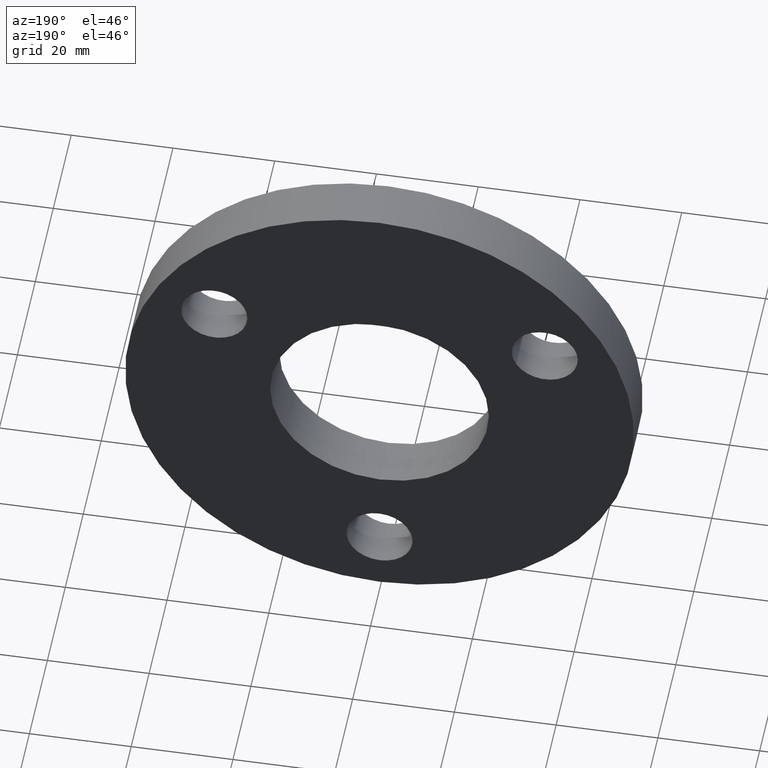
[diagram: clean part render]
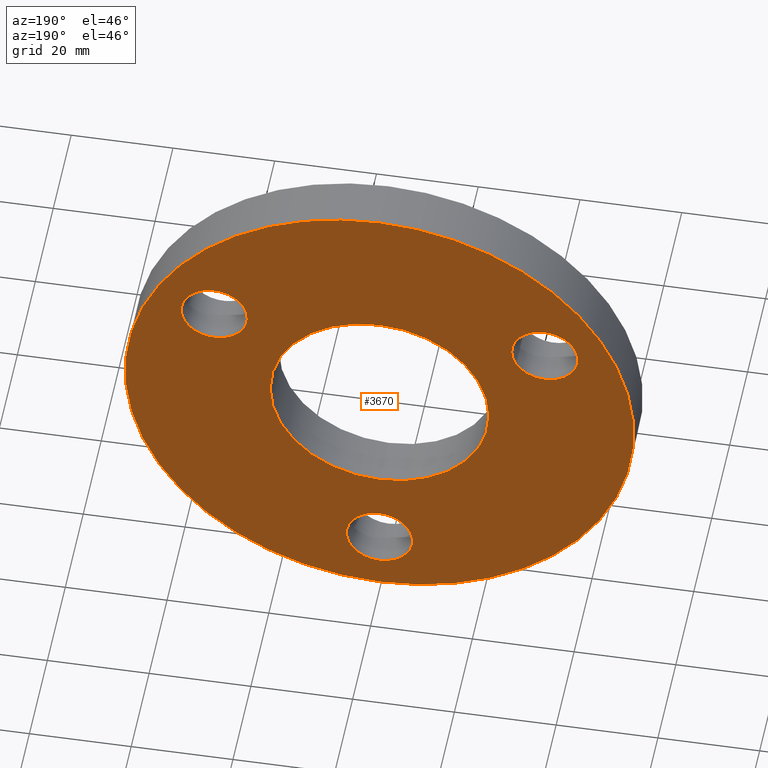
[diagram: same view with one face highlighted and labeled with its STEP entity id]
A machine part, auxiliary view. The second image highlights one B-rep face of the part: STEP entity #3670.
In plain terms, the highlighted planar face has unit normal (0, 1, 0).
Its self-contained STEP definition (entity closure, byte-faithful):
#13 = DIRECTION ( 'NONE',  ( 0.0000000000000000000, -0.0000000000000000000, 1.000000000000000000 ) ) ;
#78 = CARTESIAN_POINT ( 'NONE',  ( -26.84678751731773600, 10.00000000000000000, 15.49999999999975000 ) ) ;
#224 = ORIENTED_EDGE ( 'NONE', *, *, #3881, .F. ) ;
#399 = VERTEX_POINT ( 'NONE', #6863 ) ;
#405 = EDGE_LOOP ( 'NONE', ( #5631, #12095 ) ) ;
#431 = CIRCLE ( 'NONE', #1227, 6.500000000000000900 ) ;
#454 = ORIENTED_EDGE ( 'NONE', *, *, #1310, .F. ) ;
#836 = VERTEX_POINT ( 'NONE', #10112 ) ;
#1013 = CIRCLE ( 'NONE', #2279, 6.500000000000000000 ) ;
#1189 = DIRECTION ( 'NONE',  ( 0.0000000000000000000, 1.000000000000000000, 0.0000000000000000000 ) ) ;
#1227 = AXIS2_PLACEMENT_3D ( 'NONE', #2406, #6402, #9318 ) ;
#1310 = EDGE_CURVE ( 'NONE', #11723, #10878, #1013, .T. ) ;
#1397 = EDGE_CURVE ( 'NONE', #3913, #399, #3494, .T. ) ;
#1473 = AXIS2_PLACEMENT_3D ( 'NONE', #3468, #12360, #10270 ) ;
#1684 = CARTESIAN_POINT ( 'NONE',  ( 0.0000000000000000000, 10.00000000000000000, 0.0000000000000000000 ) ) ;
#1747 = AXIS2_PLACEMENT_3D ( 'NONE', #12008, #8939, #7911 ) ;
#1854 = CARTESIAN_POINT ( 'NONE',  ( 38.10511776651520700, 10.00000000000000000, 22.00000000000017800 ) ) ;
#1928 = ORIENTED_EDGE ( 'NONE', *, *, #7616, .T. ) ;
#2279 = AXIS2_PLACEMENT_3D ( 'NONE', #11178, #1189, #8199 ) ;
#2406 = CARTESIAN_POINT ( 'NONE',  ( 32.47595264191637200, 10.00000000000000000, 18.75000000000015300 ) ) ;
#2471 = CARTESIAN_POINT ( 'NONE',  ( 2.632990618166809200E-015, 10.00000000000000000, -21.50000000000000000 ) ) ;
#2539 = FACE_BOUND ( 'NONE', #5782, .T. ) ;
#2680 = DIRECTION ( 'NONE',  ( 0.0000000000000000000, 1.000000000000000000, 0.0000000000000000000 ) ) ;
#2698 = CIRCLE ( 'NONE', #4366, 21.50000000000000000 ) ;
#2727 = DIRECTION ( 'NONE',  ( 0.0000000000000000000, 0.0000000000000000000, 1.000000000000000000 ) ) ;
#2892 = DIRECTION ( 'NONE',  ( 0.0000000000000000000, 0.0000000000000000000, 1.000000000000000000 ) ) ;
#3011 = FACE_BOUND ( 'NONE', #5874, .T. ) ;
#3468 = CARTESIAN_POINT ( 'NONE',  ( 32.47595264191637200, 10.00000000000000000, 18.75000000000015300 ) ) ;
#3494 = CIRCLE ( 'NONE', #7325, 21.50000000000000000 ) ;
#3598 = EDGE_CURVE ( 'NONE', #399, #3913, #2698, .T. ) ;
#3670 = ADVANCED_FACE ( 'NONE', ( #10415, #10893, #3011, #2539, #5484 ), #3952, .T. ) ;
#3881 = EDGE_CURVE ( 'NONE', #5595, #8152, #11807, .T. ) ;
#3913 = VERTEX_POINT ( 'NONE', #2471 ) ;
#3952 = PLANE ( 'NONE',  #10567 ) ;
#4366 = AXIS2_PLACEMENT_3D ( 'NONE', #5722, #12741, #11726 ) ;
#4894 = DIRECTION ( 'NONE',  ( 0.0000000000000000000, 1.000000000000000000, 0.0000000000000000000 ) ) ;
#5057 = AXIS2_PLACEMENT_3D ( 'NONE', #1684, #2680, #2727 ) ;
#5222 = VERTEX_POINT ( 'NONE', #11714 ) ;
#5484 = FACE_OUTER_BOUND ( 'NONE', #7979, .T. ) ;
#5595 = VERTEX_POINT ( 'NONE', #8354 ) ;
#5631 = ORIENTED_EDGE ( 'NONE', *, *, #3598, .F. ) ;
#5722 = CARTESIAN_POINT ( 'NONE',  ( 0.0000000000000000000, 10.00000000000000000, 0.0000000000000000000 ) ) ;
#5780 = CARTESIAN_POINT ( 'NONE',  ( 0.0000000000000000000, 10.00000000000000000, -37.50000000000000000 ) ) ;
#5782 = EDGE_LOOP ( 'NONE', ( #10307, #8477 ) ) ;
#5803 = AXIS2_PLACEMENT_3D ( 'NONE', #6648, #11625, #6727 ) ;
#5874 = EDGE_LOOP ( 'NONE', ( #224, #12348 ) ) ;
#6194 = CIRCLE ( 'NONE', #1747, 6.499999999999999100 ) ;
#6333 = EDGE_CURVE ( 'NONE', #5222, #10644, #6194, .T. ) ;
#6402 = DIRECTION ( 'NONE',  ( 0.0000000000000000000, 1.000000000000000000, 0.0000000000000000000 ) ) ;
#6417 = VERTEX_POINT ( 'NONE', #8209 ) ;
#6472 = CIRCLE ( 'NONE', #10005, 6.499999999999999100 ) ;
#6612 = EDGE_CURVE ( 'NONE', #6417, #836, #10532, .T. ) ;
#6648 = CARTESIAN_POINT ( 'NONE',  ( -32.47595264191662100, 10.00000000000000000, 18.74999999999969800 ) ) ;
#6666 = CARTESIAN_POINT ( 'NONE',  ( -38.10511776651549800, 10.00000000000000000, 21.99999999999964500 ) ) ;
#6674 = ORIENTED_EDGE ( 'NONE', *, *, #8147, .F. ) ;
#6727 = DIRECTION ( 'NONE',  ( 0.8660254037844433700, 0.0000000000000000000, -0.4999999999999919500 ) ) ;
#6740 = CARTESIAN_POINT ( 'NONE',  ( 0.0000000000000000000, 10.00000000000000000, 0.0000000000000000000 ) ) ;
#6863 = CARTESIAN_POINT ( 'NONE',  ( 0.0000000000000000000, 10.00000000000000000, 21.50000000000000000 ) ) ;
#6986 = CARTESIAN_POINT ( 'NONE',  ( 0.0000000000000000000, 10.00000000000000000, 0.0000000000000000000 ) ) ;
#7325 = AXIS2_PLACEMENT_3D ( 'NONE', #9600, #12385, #7482 ) ;
#7482 = DIRECTION ( 'NONE',  ( 0.0000000000000000000, 0.0000000000000000000, 1.000000000000000000 ) ) ;
#7513 = CARTESIAN_POINT ( 'NONE',  ( 7.960204194457797400E-016, 10.00000000000000000, -44.00000000000000000 ) ) ;
#7616 = EDGE_CURVE ( 'NONE', #836, #6417, #11761, .T. ) ;
#7690 = EDGE_LOOP ( 'NONE', ( #454, #6674 ) ) ;
#7911 = DIRECTION ( 'NONE',  ( 0.0000000000000000000, 0.0000000000000000000, 1.000000000000000000 ) ) ;
#7979 = EDGE_LOOP ( 'NONE', ( #1928, #9556 ) ) ;
#7998 = DIRECTION ( 'NONE',  ( 0.0000000000000000000, 1.000000000000000000, 0.0000000000000000000 ) ) ;
#8147 = EDGE_CURVE ( 'NONE', #10878, #11723, #9270, .T. ) ;
#8152 = VERTEX_POINT ( 'NONE', #1854 ) ;
#8199 = DIRECTION ( 'NONE',  ( 0.8660254037844433700, 0.0000000000000000000, -0.4999999999999919500 ) ) ;
#8209 = CARTESIAN_POINT ( 'NONE',  ( 6.123233995736766100E-015, 10.00000000000000000, 50.00000000000000000 ) ) ;
#8354 = CARTESIAN_POINT ( 'NONE',  ( 26.84678751731753400, 10.00000000000000000, 15.50000000000012400 ) ) ;
#8477 = ORIENTED_EDGE ( 'NONE', *, *, #8918, .F. ) ;
#8900 = DIRECTION ( 'NONE',  ( 0.0000000000000000000, 0.0000000000000000000, 1.000000000000000000 ) ) ;
#8918 = EDGE_CURVE ( 'NONE', #10644, #5222, #6472, .T. ) ;
#8939 = DIRECTION ( 'NONE',  ( 0.0000000000000000000, 1.000000000000000000, 0.0000000000000000000 ) ) ;
#9270 = CIRCLE ( 'NONE', #5803, 6.500000000000000000 ) ;
#9318 = DIRECTION ( 'NONE',  ( -0.8660254037844362700, 0.0000000000000000000, -0.5000000000000041100 ) ) ;
#9556 = ORIENTED_EDGE ( 'NONE', *, *, #6612, .T. ) ;
#9600 = CARTESIAN_POINT ( 'NONE',  ( 0.0000000000000000000, 10.00000000000000000, 0.0000000000000000000 ) ) ;
#10005 = AXIS2_PLACEMENT_3D ( 'NONE', #5780, #12670, #2892 ) ;
#10112 = CARTESIAN_POINT ( 'NONE',  ( 0.0000000000000000000, 10.00000000000000000, -50.00000000000000000 ) ) ;
#10270 = DIRECTION ( 'NONE',  ( -0.8660254037844362700, 0.0000000000000000000, -0.5000000000000041100 ) ) ;
#10307 = ORIENTED_EDGE ( 'NONE', *, *, #6333, .F. ) ;
#10415 = FACE_BOUND ( 'NONE', #405, .T. ) ;
#10532 = CIRCLE ( 'NONE', #5057, 50.00000000000000000 ) ;
#10567 = AXIS2_PLACEMENT_3D ( 'NONE', #6986, #7998, #13 ) ;
#10644 = VERTEX_POINT ( 'NONE', #7513 ) ;
#10878 = VERTEX_POINT ( 'NONE', #6666 ) ;
#10893 = FACE_BOUND ( 'NONE', #7690, .T. ) ;
#11178 = CARTESIAN_POINT ( 'NONE',  ( -32.47595264191662100, 10.00000000000000000, 18.74999999999969800 ) ) ;
#11625 = DIRECTION ( 'NONE',  ( 0.0000000000000000000, 1.000000000000000000, 0.0000000000000000000 ) ) ;
#11714 = CARTESIAN_POINT ( 'NONE',  ( 0.0000000000000000000, 10.00000000000000000, -31.00000000000000000 ) ) ;
#11723 = VERTEX_POINT ( 'NONE', #78 ) ;
#11726 = DIRECTION ( 'NONE',  ( 0.0000000000000000000, 0.0000000000000000000, 1.000000000000000000 ) ) ;
#11761 = CIRCLE ( 'NONE', #12435, 50.00000000000000000 ) ;
#11807 = CIRCLE ( 'NONE', #1473, 6.500000000000000900 ) ;
#11899 = EDGE_CURVE ( 'NONE', #8152, #5595, #431, .T. ) ;
#12008 = CARTESIAN_POINT ( 'NONE',  ( 0.0000000000000000000, 10.00000000000000000, -37.50000000000000000 ) ) ;
#12095 = ORIENTED_EDGE ( 'NONE', *, *, #1397, .F. ) ;
#12348 = ORIENTED_EDGE ( 'NONE', *, *, #11899, .F. ) ;
#12360 = DIRECTION ( 'NONE',  ( 0.0000000000000000000, 1.000000000000000000, 0.0000000000000000000 ) ) ;
#12385 = DIRECTION ( 'NONE',  ( 0.0000000000000000000, 1.000000000000000000, 0.0000000000000000000 ) ) ;
#12435 = AXIS2_PLACEMENT_3D ( 'NONE', #6740, #4894, #8900 ) ;
#12670 = DIRECTION ( 'NONE',  ( 0.0000000000000000000, 1.000000000000000000, 0.0000000000000000000 ) ) ;
#12741 = DIRECTION ( 'NONE',  ( 0.0000000000000000000, 1.000000000000000000, 0.0000000000000000000 ) ) ;